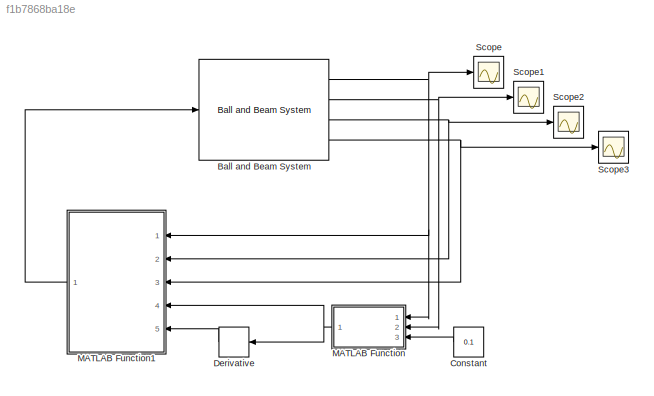
MODEL slx_f1b7868ba18e
KIND model
CONFIG AbsTol = auto
CONFIG EnableMultiTasking = off
CONFIG FixedStep = auto
CONFIG MaxStep = auto
CONFIG MinStep = auto
CONFIG RelTol = 1e-3
CONFIG SampleTimeConstraint = Unconstrained
CONFIG Solver = VariableStepAuto
CONFIG SolverName = VariableStepAuto
CONFIG StartTime = 0.0
CONFIG StopTime = 100
BLOCK [Reference] Ball and Beam System  REF=ctsmodel/Ball and Beam System/Ball and Beam System  (lib defined in slx_d74dae9424dc)
  Ports = [1, 4]
  SourceBlock = ctsmodel/Ball and Beam System/Ball and Beam System
  SourceProductName = Control System Model Toolbox
BLOCK [Constant] Constant
  NameLocation = top
  Value = 0.1
BLOCK [Derivative] Derivative
  NameLocation = top
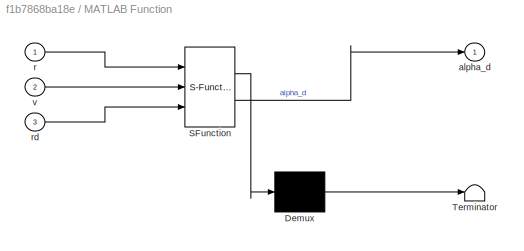
BLOCK [SubSystem] MATLAB Function
  ErrorFcn = Stateflow.Translate.translate
  NameLocation = top
  PermitHierarchicalResolution = ExplicitOnly
  Ports = [3, 1]
  RequestExecContextInheritance = off
  SFBlockType = MATLAB Function
  TreatAsAtomicUnit = on
BLOCK [Demux] MATLAB Function/ Demux 
  Outputs = 1
  Ports = [1, 1]
BLOCK [S-Function] MATLAB Function/ SFunction 
  EnableBusSupport = on
  FunctionName = sf_sfun
  PortCounts = [3 2]
  Ports = [3, 2]
  SFcnIsStateOwnerBlock = off
  SFunctionDeploymentMode = off
  Tag = Stateflow S-Function 2
BLOCK [Terminator] MATLAB Function/ Terminator 
BLOCK [Outport] MATLAB Function/alpha_d
BLOCK [Inport] MATLAB Function/r
BLOCK [Inport] MATLAB Function/rd
  Port = 3
BLOCK [Inport] MATLAB Function/v
  Port = 2
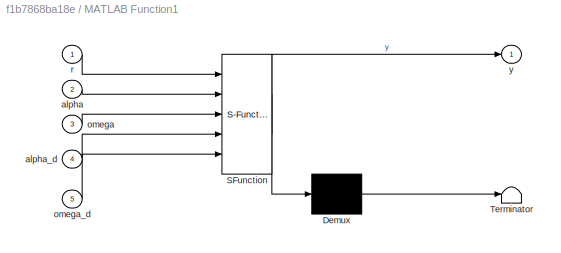
BLOCK [SubSystem] MATLAB Function1
  ErrorFcn = Stateflow.Translate.translate
  NameLocation = top
  PermitHierarchicalResolution = ExplicitOnly
  Ports = [5, 1]
  RequestExecContextInheritance = off
  SFBlockType = MATLAB Function
  TreatAsAtomicUnit = on
BLOCK [Demux] MATLAB Function1/ Demux 
  Outputs = 1
  Ports = [1, 1]
BLOCK [S-Function] MATLAB Function1/ SFunction 
  EnableBusSupport = on
  FunctionName = sf_sfun
  PortCounts = [5 2]
  Ports = [5, 2]
  SFcnIsStateOwnerBlock = off
  SFunctionDeploymentMode = off
  Tag = Stateflow S-Function 1
BLOCK [Terminator] MATLAB Function1/ Terminator 
BLOCK [Inport] MATLAB Function1/alpha
  Port = 2
BLOCK [Inport] MATLAB Function1/alpha_d
  Port = 4
BLOCK [Inport] MATLAB Function1/omega
  Port = 3
BLOCK [Inport] MATLAB Function1/omega_d
  Port = 5
BLOCK [Inport] MATLAB Function1/r
BLOCK [Outport] MATLAB Function1/y
BLOCK [Scope] Scope
  Floating = off
  NumInputPorts = 1
  Ports = [1]
  ScopeSpecificationString = Simulink.scopes.TimeScopeBlockCfg('CurrentConfiguration', extmgr.ConfigurationSet(extmgr.Configuration('Core','General UI',true),extmgr.Configuration('Core','Source UI',true),extmgr.Configuration('Sources','WiredSimulink',true),extmgr.Configuration('Visuals','Time Domain',true,'SerializedDisplays',{struct('MinYLimReal','-0.01266','MaxYLimReal','0.1139','YLabelReal','','MinYLimMag','0.00000','MaxYL...<+1367ch>
BLOCK [Scope] Scope1
  Floating = off
  NumInputPorts = 1
  Ports = [1]
  ScopeSpecificationString = Simulink.scopes.TimeScopeBlockCfg('CurrentConfiguration', extmgr.ConfigurationSet(extmgr.Configuration('Core','General UI',true),extmgr.Configuration('Core','Source UI',true),extmgr.Configuration('Sources','WiredSimulink',true,'DataLoggingVariableName','ScopeData1'),extmgr.Configuration('Visuals','Time Domain',true,'SerializedDisplays',{struct('MinYLimReal','-0.01269','MaxYLimReal','0.06409','YLab...<+1381ch>
BLOCK [Scope] Scope2
  Floating = off
  NumInputPorts = 1
  Ports = [1]
  ScopeSpecificationString = Simulink.scopes.TimeScopeBlockCfg('CurrentConfiguration', extmgr.ConfigurationSet(extmgr.Configuration('Core','General UI',true),extmgr.Configuration('Core','Source UI',true),extmgr.Configuration('Sources','WiredSimulink',true,'DataLoggingVariableName','ScopeData2'),extmgr.Configuration('Visuals','Time Domain',true,'SerializedDisplays',{struct('MinYLimReal','-0.01226','MaxYLimReal','0.01332','YLab...<+1410ch>
BLOCK [Scope] Scope3
  Floating = off
  NumInputPorts = 1
  Ports = [1]
  ScopeSpecificationString = Simulink.scopes.TimeScopeBlockCfg('CurrentConfiguration', extmgr.ConfigurationSet(extmgr.Configuration('Core','General UI',true),extmgr.Configuration('Core','Source UI',true),extmgr.Configuration('Sources','WiredSimulink',true,'DataLoggingVariableName','ScopeData3'),extmgr.Configuration('Visuals','Time Domain',true,'SerializedDisplays',{struct('MinYLimReal','-0.03491','MaxYLimReal','0.02809','YLab...<+1414ch>
NET Ball and Beam System:1 -> MATLAB Function1:1, MATLAB Function:1, Scope:1
NET Ball and Beam System:2 -> MATLAB Function:2, Scope1:1
NET Ball and Beam System:3 -> MATLAB Function1:2, Scope2:1
NET Ball and Beam System:4 -> MATLAB Function1:3, Scope3:1
LINE Constant:1 -> MATLAB Function:3
LINE Derivative:1 -> MATLAB Function1:5
LINE MATLAB Function1:1 -> Ball and Beam System:1
NET MATLAB Function:1 -> Derivative:1, MATLAB Function1:4
note: NET lines group one-source signal fan-out (src -> all destinations, sorted); 1:1 wires keep LINE
CHART MATLAB Function1 states=1 transitions=1
  STATE_LABEL 'eML_blk_kernel()'
  STATE_LABEL 'SCRIPT:\nfunction y = fcn(r, alpha, omega, alpha_d, omega_d)\n\nm = 0.11;\nM = 0.4;\nL = 0.4;\ng = 9.81;\n\nk3=1;\nk4=2;\n\ne3 = alpha - alpha_d;\ne4 = omega-omega_d + k3*e3;\n\ny = -(k4*e4+k3*(omega-omega_d)+e3)*(m*(L-r)^2+1/3*M*L^2)+(m*g*(L-r)+0.5*M*g*L);\n'
CHART MATLAB Function states=1 transitions=1
  STATE_LABEL 'eML_blk_kernel()'
  STATE_LABEL 'SCRIPT:\nfunction alpha_d = fcn(r, v, rd)\n\nm = 0.11;\nR = 0.015;\nJ = 0.00001;\ng = 9.81;\n\nk1=1;\nk2=2;\n\ne1 = r - rd;\ne2 = v + k1*e1;\n\nalpha_d = -(k2*e2+k1*v+e1)*(m+J/R^2)/(m*g);\n'
CHART  states=0 transitions=0
CHART  states=0 transitions=0
